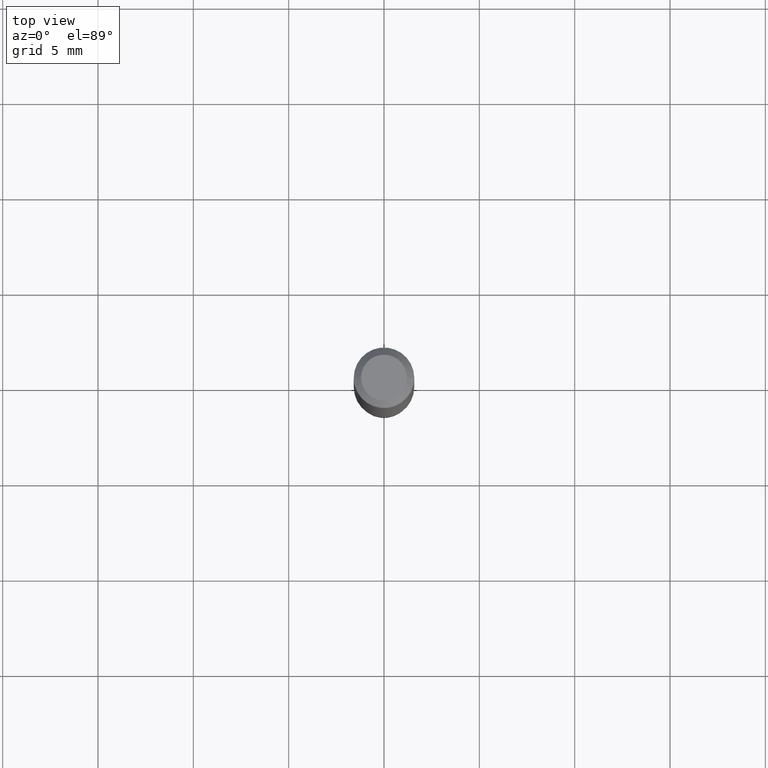
[diagram: clean part render]
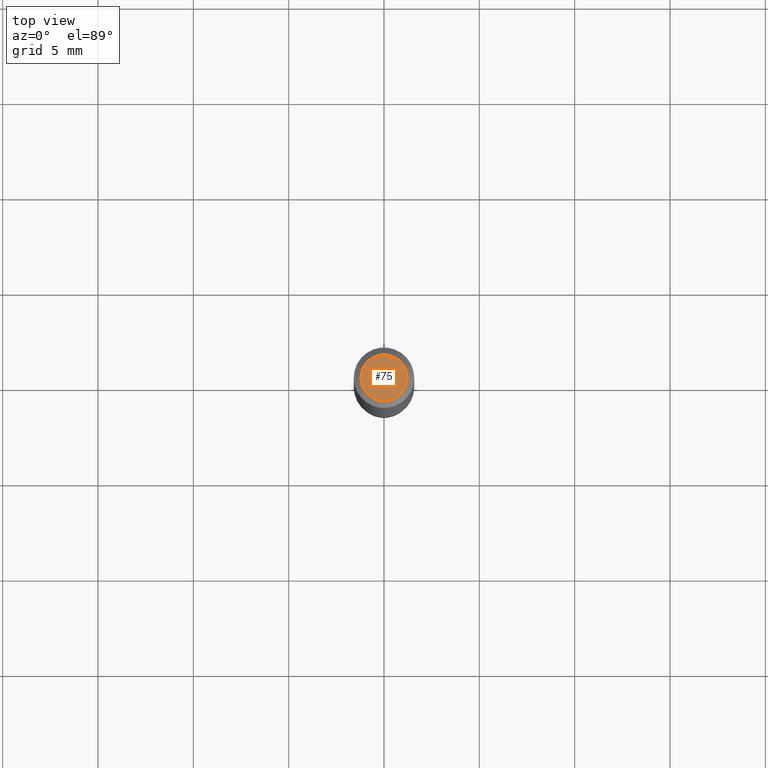
[diagram: same view with one face highlighted and labeled with its STEP entity id]
A machine part, top view. The second image highlights one B-rep face of the part: STEP entity #75.
In plain terms, the highlighted planar face has unit normal (0, -0, -1).
Its self-contained STEP definition (entity closure, byte-faithful):
#11 = AXIS2_PLACEMENT_3D ( 'NONE', #370, #378, #450 ) ;
#23 = AXIS2_PLACEMENT_3D ( 'NONE', #385, #273, #227 ) ;
#27 = EDGE_CURVE ( 'NONE', #192, #226, #403, .T. ) ;
#45 = AXIS2_PLACEMENT_3D ( 'NONE', #84, #357, #472 ) ;
#75 = ADVANCED_FACE ( 'NONE', ( #161 ), #314, .F. ) ;
#84 = CARTESIAN_POINT ( 'NONE',  ( 3.316907271900976589E-16, 0.04750000000000000749, -2.925296391183627249E-17 ) ) ;
#161 = FACE_OUTER_BOUND ( 'NONE', #272, .T. ) ;
#192 = VERTEX_POINT ( 'NONE', #434 ) ;
#226 = VERTEX_POINT ( 'NONE', #405 ) ;
#227 = DIRECTION ( 'NONE',  ( 1.000000000000000000, -6.982962677686266711E-15, 4.852736867747365086E-29 ) ) ;
#272 = EDGE_LOOP ( 'NONE', ( #468, #409 ) ) ;
#273 = DIRECTION ( 'NONE',  ( -2.445468806185136597E-29, 3.491481338843145583E-15, 1.000000000000000000 ) ) ;
#314 = PLANE ( 'NONE',  #45 ) ;
#357 = DIRECTION ( 'NONE',  ( 2.438088387897960049E-29, -3.491481338843145188E-15, -1.000000000000000000 ) ) ;
#370 = CARTESIAN_POINT ( 'NONE',  ( -6.680649051745406845E-45, 9.538196290434862081E-31, 2.731847993664263218E-16 ) ) ;
#378 = DIRECTION ( 'NONE',  ( -2.445468806185136597E-29, 3.491481338843145583E-15, 1.000000000000000000 ) ) ;
#385 = CARTESIAN_POINT ( 'NONE',  ( -6.680649051745406845E-45, 9.538196290434862081E-31, 2.731847993664263218E-16 ) ) ;
#386 = EDGE_CURVE ( 'NONE', #226, #192, #438, .T. ) ;
#403 = CIRCLE ( 'NONE', #23, 0.04750000000000000749 ) ;
#405 = CARTESIAN_POINT ( 'NONE',  ( 0.04750000000000000749, -4.035134999187568762E-16, 2.731847993664288856E-16 ) ) ;
#409 = ORIENTED_EDGE ( 'NONE', *, *, #386, .T. ) ;
#434 = CARTESIAN_POINT ( 'NONE',  ( -0.04750000000000000749, 3.578768372314221353E-16, 2.731847993664239060E-16 ) ) ;
#438 = CIRCLE ( 'NONE', #11, 0.04750000000000000749 ) ;
#450 = DIRECTION ( 'NONE',  ( 1.000000000000000000, -6.982962677686266711E-15, 4.852736867747365086E-29 ) ) ;
#468 = ORIENTED_EDGE ( 'NONE', *, *, #27, .T. ) ;
#472 = DIRECTION ( 'NONE',  ( -1.000000000000000000, 6.982962677686265922E-15, -4.876176775795935793E-29 ) ) ;